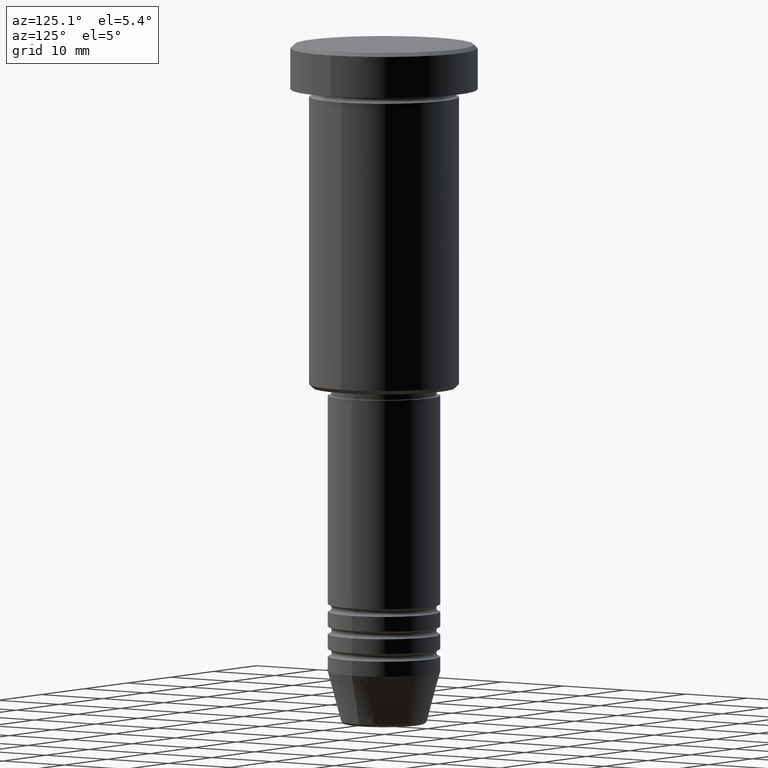
[diagram: clean part render]
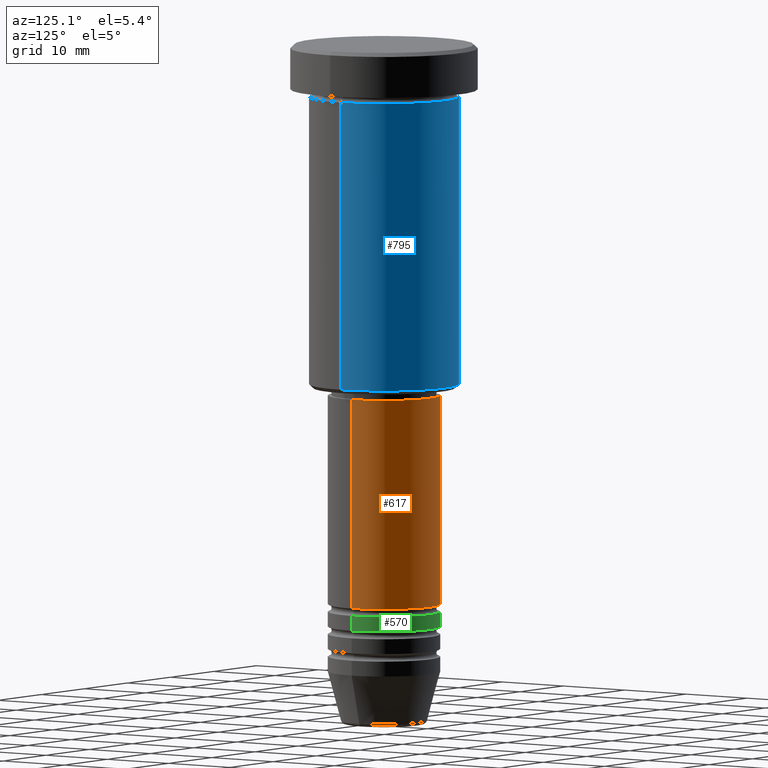
[diagram: same view with three faces highlighted in distinct colors, each labeled with its STEP entity id]
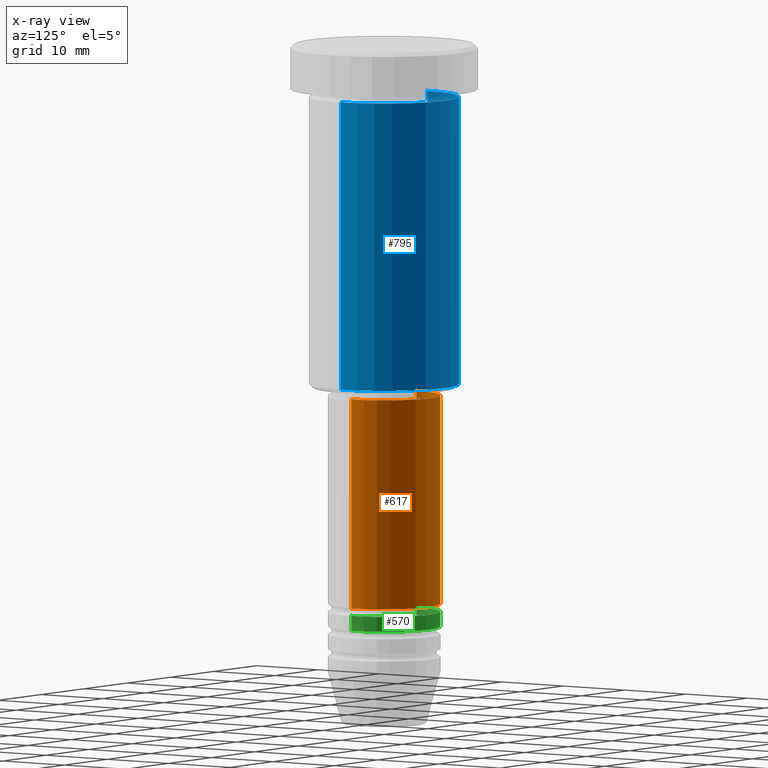
[diagram: x-ray of the same camera — body ghosted, the three highlighted faces saturated]
A machine part, auxiliary view with three faces highlighted in distinct colors.
The next image is the same camera in x-ray (body ghosted, the three faces saturated) — at least one of them is partly hidden behind the body in this view.
Their STEP definitions:

[orange] entity #617 — the highlighted cylindrical surface (partial cylindrical patch) has radius 7.5 mm, axis along (-0, -0, 1).
#1 = EDGE_CURVE ( 'NONE', #1060, #1145, #780, .T. ) ;
#23 = CARTESIAN_POINT ( 'NONE',  ( -7.500000000000000000, 9.184850993605147944E-16, -46.99999999999997158 ) ) ;
#29 = VECTOR ( 'NONE', #778, 1000.000000000000000 ) ;
#42 = AXIS2_PLACEMENT_3D ( 'NONE', #82, #453, #633 ) ;
#70 = EDGE_CURVE ( 'NONE', #1060, #977, #680, .T. ) ;
#82 = CARTESIAN_POINT ( 'NONE',  ( 0.000000000000000000, 0.000000000000000000, 0.000000000000000000 ) ) ;
#117 = CARTESIAN_POINT ( 'NONE',  ( -7.500000000000000000, 9.184850993605147944E-16, -74.99999999999997158 ) ) ;
#192 = EDGE_LOOP ( 'NONE', ( #516, #542, #642, #712 ) ) ;
#226 = DIRECTION ( 'NONE',  ( -0.000000000000000000, -0.000000000000000000, 1.000000000000000000 ) ) ;
#301 = CARTESIAN_POINT ( 'NONE',  ( 7.500000000000000000, 0.000000000000000000, -46.99999999999997158 ) ) ;
#305 = AXIS2_PLACEMENT_3D ( 'NONE', #550, #456, #736 ) ;
#310 = AXIS2_PLACEMENT_3D ( 'NONE', #313, #226, #942 ) ;
#313 = CARTESIAN_POINT ( 'NONE',  ( 0.000000000000000000, 0.000000000000000000, -74.99999999999997158 ) ) ;
#374 = EDGE_CURVE ( 'NONE', #977, #949, #1073, .T. ) ;
#453 = DIRECTION ( 'NONE',  ( -0.000000000000000000, -0.000000000000000000, 1.000000000000000000 ) ) ;
#456 = DIRECTION ( 'NONE',  ( -0.000000000000000000, -0.000000000000000000, 1.000000000000000000 ) ) ;
#516 = ORIENTED_EDGE ( 'NONE', *, *, #1, .T. ) ;
#542 = ORIENTED_EDGE ( 'NONE', *, *, #1009, .T. ) ;
#550 = CARTESIAN_POINT ( 'NONE',  ( 0.000000000000000000, 0.000000000000000000, -46.99999999999997158 ) ) ;
#589 = CARTESIAN_POINT ( 'NONE',  ( 7.500000000000000000, 0.000000000000000000, 0.000000000000000000 ) ) ;
#617 = ADVANCED_FACE ( 'NONE', ( #911 ), #1105, .T. ) ;
#633 = DIRECTION ( 'NONE',  ( 1.000000000000000000, 0.000000000000000000, 0.000000000000000000 ) ) ;
#642 = ORIENTED_EDGE ( 'NONE', *, *, #374, .F. ) ;
#680 = LINE ( 'NONE', #589, #1079 ) ;
#681 = LINE ( 'NONE', #1044, #29 ) ;
#712 = ORIENTED_EDGE ( 'NONE', *, *, #70, .F. ) ;
#736 = DIRECTION ( 'NONE',  ( 1.000000000000000000, 0.000000000000000000, 0.000000000000000000 ) ) ;
#778 = DIRECTION ( 'NONE',  ( -0.000000000000000000, -0.000000000000000000, 1.000000000000000000 ) ) ;
#780 = CIRCLE ( 'NONE', #310, 7.500000000000000000 ) ;
#792 = CARTESIAN_POINT ( 'NONE',  ( 7.500000000000000000, 0.000000000000000000, -74.99999999999997158 ) ) ;
#911 = FACE_OUTER_BOUND ( 'NONE', #192, .T. ) ;
#942 = DIRECTION ( 'NONE',  ( 1.000000000000000000, 0.000000000000000000, 0.000000000000000000 ) ) ;
#949 = VERTEX_POINT ( 'NONE', #23 ) ;
#977 = VERTEX_POINT ( 'NONE', #301 ) ;
#1009 = EDGE_CURVE ( 'NONE', #1145, #949, #681, .T. ) ;
#1043 = DIRECTION ( 'NONE',  ( -0.000000000000000000, -0.000000000000000000, 1.000000000000000000 ) ) ;
#1044 = CARTESIAN_POINT ( 'NONE',  ( -7.500000000000000000, 9.184850993605147944E-16, 0.000000000000000000 ) ) ;
#1060 = VERTEX_POINT ( 'NONE', #792 ) ;
#1073 = CIRCLE ( 'NONE', #305, 7.500000000000000000 ) ;
#1079 = VECTOR ( 'NONE', #1043, 1000.000000000000000 ) ;
#1105 = CYLINDRICAL_SURFACE ( 'NONE', #42, 7.500000000000000000 ) ;
#1145 = VERTEX_POINT ( 'NONE', #117 ) ;

[blue] entity #795 — the highlighted cylindrical surface (partial cylindrical patch) has radius 10 mm, axis along (-0, -0, 1).
#14 = VECTOR ( 'NONE', #560, 1000.000000000000000 ) ;
#22 = LINE ( 'NONE', #479, #14 ) ;
#175 = EDGE_CURVE ( 'NONE', #492, #454, #846, .T. ) ;
#273 = DIRECTION ( 'NONE',  ( -0.000000000000000000, -0.000000000000000000, 1.000000000000000000 ) ) ;
#318 = DIRECTION ( 'NONE',  ( -0.000000000000000000, -0.000000000000000000, 1.000000000000000000 ) ) ;
#333 = VERTEX_POINT ( 'NONE', #648 ) ;
#347 = CARTESIAN_POINT ( 'NONE',  ( 10.00000000000000000, 0.000000000000000000, -45.50000000000002132 ) ) ;
#391 = VERTEX_POINT ( 'NONE', #873 ) ;
#424 = VECTOR ( 'NONE', #688, 1000.000000000000000 ) ;
#439 = ORIENTED_EDGE ( 'NONE', *, *, #552, .F. ) ;
#443 = CYLINDRICAL_SURFACE ( 'NONE', #909, 10.00000000000000000 ) ;
#454 = VERTEX_POINT ( 'NONE', #810 ) ;
#460 = EDGE_CURVE ( 'NONE', #492, #391, #510, .T. ) ;
#468 = ORIENTED_EDGE ( 'NONE', *, *, #460, .F. ) ;
#479 = CARTESIAN_POINT ( 'NONE',  ( -10.00000000000000000, 1.224646799147353256E-15, 0.000000000000000000 ) ) ;
#492 = VERTEX_POINT ( 'NONE', #347 ) ;
#510 = LINE ( 'NONE', #1144, #424 ) ;
#527 = EDGE_LOOP ( 'NONE', ( #1082, #715, #439, #468 ) ) ;
#552 = EDGE_CURVE ( 'NONE', #391, #333, #854, .T. ) ;
#557 = CARTESIAN_POINT ( 'NONE',  ( 0.000000000000000000, 0.000000000000000000, 0.000000000000000000 ) ) ;
#560 = DIRECTION ( 'NONE',  ( -0.000000000000000000, -0.000000000000000000, 1.000000000000000000 ) ) ;
#637 = DIRECTION ( 'NONE',  ( 1.000000000000000000, 0.000000000000000000, 0.000000000000000000 ) ) ;
#648 = CARTESIAN_POINT ( 'NONE',  ( -10.00000000000000000, 1.224646799147353256E-15, -6.999999999999996447 ) ) ;
#672 = EDGE_CURVE ( 'NONE', #454, #333, #22, .T. ) ;
#688 = DIRECTION ( 'NONE',  ( -0.000000000000000000, -0.000000000000000000, 1.000000000000000000 ) ) ;
#715 = ORIENTED_EDGE ( 'NONE', *, *, #672, .T. ) ;
#795 = ADVANCED_FACE ( 'NONE', ( #1086 ), #443, .T. ) ;
#810 = CARTESIAN_POINT ( 'NONE',  ( -10.00000000000000000, 1.224646799147353256E-15, -45.50000000000002132 ) ) ;
#846 = CIRCLE ( 'NONE', #1138, 10.00000000000000000 ) ;
#854 = CIRCLE ( 'NONE', #1037, 10.00000000000000000 ) ;
#873 = CARTESIAN_POINT ( 'NONE',  ( 10.00000000000000000, 0.000000000000000000, -6.999999999999996447 ) ) ;
#889 = DIRECTION ( 'NONE',  ( 1.000000000000000000, 0.000000000000000000, 0.000000000000000000 ) ) ;
#909 = AXIS2_PLACEMENT_3D ( 'NONE', #557, #273, #637 ) ;
#967 = DIRECTION ( 'NONE',  ( -1.000000000000000000, 0.000000000000000000, 0.000000000000000000 ) ) ;
#973 = CARTESIAN_POINT ( 'NONE',  ( 0.000000000000000000, 0.000000000000000000, -45.50000000000002132 ) ) ;
#987 = DIRECTION ( 'NONE',  ( -0.000000000000000000, -0.000000000000000000, 1.000000000000000000 ) ) ;
#1037 = AXIS2_PLACEMENT_3D ( 'NONE', #1141, #318, #889 ) ;
#1082 = ORIENTED_EDGE ( 'NONE', *, *, #175, .T. ) ;
#1086 = FACE_OUTER_BOUND ( 'NONE', #527, .T. ) ;
#1138 = AXIS2_PLACEMENT_3D ( 'NONE', #973, #987, #967 ) ;
#1141 = CARTESIAN_POINT ( 'NONE',  ( 0.000000000000000000, 0.000000000000000000, -6.999999999999996447 ) ) ;
#1144 = CARTESIAN_POINT ( 'NONE',  ( 10.00000000000000000, 0.000000000000000000, 0.000000000000000000 ) ) ;

[green] entity #570 — the highlighted cylindrical surface (partial cylindrical patch) has radius 7.5 mm, axis along (-0, -0, 1).
#7 = CYLINDRICAL_SURFACE ( 'NONE', #11, 7.500000000000000000 ) ;
#11 = AXIS2_PLACEMENT_3D ( 'NONE', #357, #370, #1013 ) ;
#51 = CARTESIAN_POINT ( 'NONE',  ( 0.000000000000000000, 0.000000000000000000, -77.99999999999997158 ) ) ;
#86 = AXIS2_PLACEMENT_3D ( 'NONE', #210, #936, #573 ) ;
#91 = VERTEX_POINT ( 'NONE', #300 ) ;
#97 = FACE_OUTER_BOUND ( 'NONE', #256, .T. ) ;
#189 = CARTESIAN_POINT ( 'NONE',  ( 7.500000000000000000, 0.000000000000000000, 0.000000000000000000 ) ) ;
#195 = CARTESIAN_POINT ( 'NONE',  ( 7.500000000000000000, 0.000000000000000000, -77.99999999999997158 ) ) ;
#210 = CARTESIAN_POINT ( 'NONE',  ( 0.000000000000000000, 0.000000000000000000, -75.99999999999997158 ) ) ;
#256 = EDGE_LOOP ( 'NONE', ( #1006, #547, #499, #1164 ) ) ;
#300 = CARTESIAN_POINT ( 'NONE',  ( -7.500000000000000000, 9.184850993605147944E-16, -77.99999999999997158 ) ) ;
#357 = CARTESIAN_POINT ( 'NONE',  ( 0.000000000000000000, 0.000000000000000000, 0.000000000000000000 ) ) ;
#370 = DIRECTION ( 'NONE',  ( -0.000000000000000000, -0.000000000000000000, 1.000000000000000000 ) ) ;
#389 = VECTOR ( 'NONE', #1109, 1000.000000000000000 ) ;
#431 = VERTEX_POINT ( 'NONE', #601 ) ;
#471 = LINE ( 'NONE', #660, #959 ) ;
#480 = VERTEX_POINT ( 'NONE', #1070 ) ;
#499 = ORIENTED_EDGE ( 'NONE', *, *, #703, .F. ) ;
#528 = EDGE_CURVE ( 'NONE', #571, #91, #638, .T. ) ;
#530 = DIRECTION ( 'NONE',  ( 1.000000000000000000, 0.000000000000000000, 0.000000000000000000 ) ) ;
#547 = ORIENTED_EDGE ( 'NONE', *, *, #1162, .T. ) ;
#570 = ADVANCED_FACE ( 'NONE', ( #97 ), #7, .T. ) ;
#571 = VERTEX_POINT ( 'NONE', #195 ) ;
#573 = DIRECTION ( 'NONE',  ( 1.000000000000000000, 0.000000000000000000, 0.000000000000000000 ) ) ;
#576 = DIRECTION ( 'NONE',  ( -0.000000000000000000, -0.000000000000000000, 1.000000000000000000 ) ) ;
#601 = CARTESIAN_POINT ( 'NONE',  ( -7.500000000000000000, 9.184850993605147944E-16, -75.99999999999997158 ) ) ;
#638 = CIRCLE ( 'NONE', #906, 7.500000000000000000 ) ;
#660 = CARTESIAN_POINT ( 'NONE',  ( -7.500000000000000000, 9.184850993605147944E-16, 0.000000000000000000 ) ) ;
#677 = CIRCLE ( 'NONE', #86, 7.500000000000000000 ) ;
#703 = EDGE_CURVE ( 'NONE', #480, #431, #677, .T. ) ;
#801 = EDGE_CURVE ( 'NONE', #571, #480, #923, .T. ) ;
#906 = AXIS2_PLACEMENT_3D ( 'NONE', #51, #976, #530 ) ;
#923 = LINE ( 'NONE', #189, #389 ) ;
#936 = DIRECTION ( 'NONE',  ( -0.000000000000000000, -0.000000000000000000, 1.000000000000000000 ) ) ;
#959 = VECTOR ( 'NONE', #576, 1000.000000000000000 ) ;
#976 = DIRECTION ( 'NONE',  ( -0.000000000000000000, -0.000000000000000000, 1.000000000000000000 ) ) ;
#1006 = ORIENTED_EDGE ( 'NONE', *, *, #528, .T. ) ;
#1013 = DIRECTION ( 'NONE',  ( 1.000000000000000000, 0.000000000000000000, 0.000000000000000000 ) ) ;
#1070 = CARTESIAN_POINT ( 'NONE',  ( 7.500000000000000000, 0.000000000000000000, -75.99999999999997158 ) ) ;
#1109 = DIRECTION ( 'NONE',  ( -0.000000000000000000, -0.000000000000000000, 1.000000000000000000 ) ) ;
#1162 = EDGE_CURVE ( 'NONE', #91, #431, #471, .T. ) ;
#1164 = ORIENTED_EDGE ( 'NONE', *, *, #801, .F. ) ;